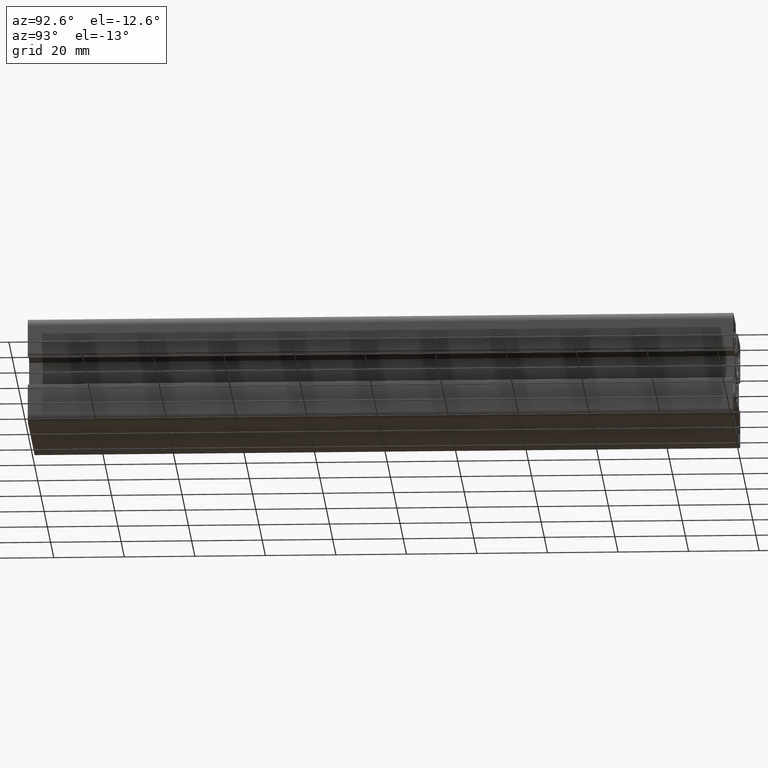
[diagram: clean part render]
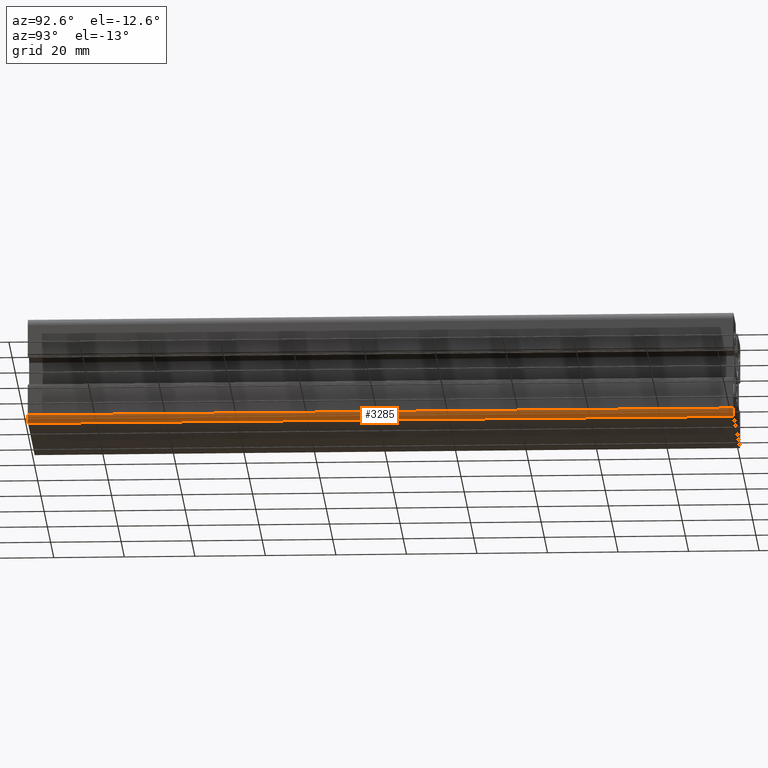
[diagram: same view with one face highlighted and labeled with its STEP entity id]
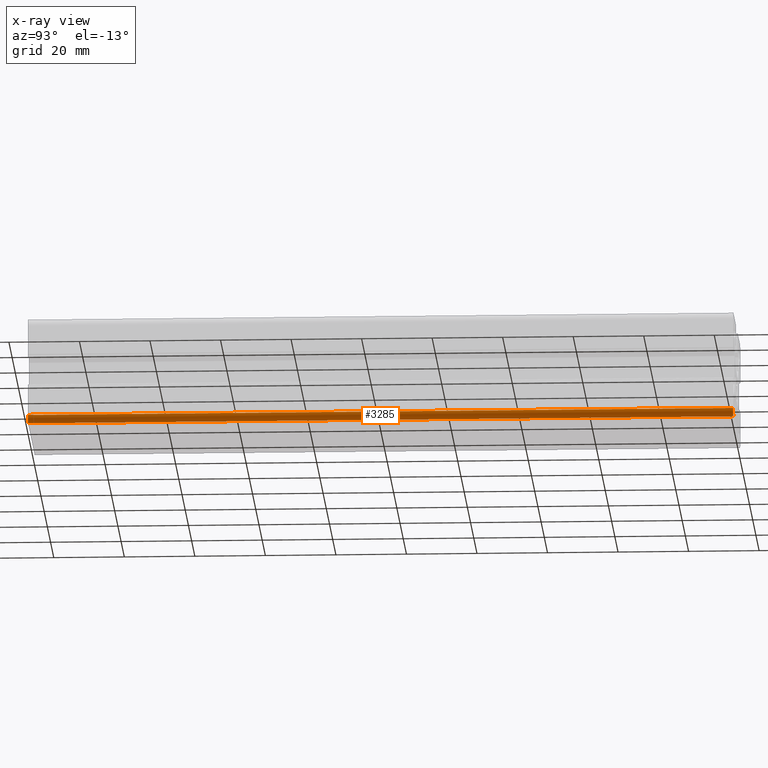
[diagram: x-ray of the same camera — body ghosted, the highlighted face saturated]
A machine part, auxiliary view. The second image highlights one B-rep face of the part: STEP entity #3285.
The next image is the same camera in x-ray: the body ghosted, the highlighted face saturated — about 0% of this face is hidden behind the body in this view.
In plain terms, the highlighted cylindrical surface (edge-blend (fillet) strip) has radius 2 mm, axis along (0, 1, 0).
Its self-contained STEP definition (entity closure, byte-faithful):
#94 = CARTESIAN_POINT ( 'NONE',  ( 22.49999999991250000, 0.0000000000000000000, -13.00002767643860000 ) ) ;
#107 = VECTOR ( 'NONE', #3067, 1000.000000000000000 ) ;
#263 = CARTESIAN_POINT ( 'NONE',  ( 20.49999999991250000, 0.0000000000000000000, -13.00002767643860000 ) ) ;
#459 = VERTEX_POINT ( 'NONE', #2526 ) ;
#881 = AXIS2_PLACEMENT_3D ( 'NONE', #263, #2854, #5470 ) ;
#1008 = CYLINDRICAL_SURFACE ( 'NONE', #4129, 2.000000000000000000 ) ;
#1251 = EDGE_CURVE ( 'NONE', #3647, #1685, #4439, .T. ) ;
#1336 = AXIS2_PLACEMENT_3D ( 'NONE', #1420, #4419, #1819 ) ;
#1345 = CARTESIAN_POINT ( 'NONE',  ( 20.49999999993500000, 0.0000000000000000000, -15.00002767643860000 ) ) ;
#1420 = CARTESIAN_POINT ( 'NONE',  ( 20.49999999991250000, 200.0000000000000000, -13.00002767643860000 ) ) ;
#1450 = CARTESIAN_POINT ( 'NONE',  ( 20.49999999993502100, 0.0000000000000000000, -15.00002767643860000 ) ) ;
#1685 = VERTEX_POINT ( 'NONE', #1450 ) ;
#1819 = DIRECTION ( 'NONE',  ( 0.0000000000000000000, 0.0000000000000000000, 1.000000000000000000 ) ) ;
#2237 = DIRECTION ( 'NONE',  ( -0.0000000000000000000, -1.000000000000000000, -0.0000000000000000000 ) ) ;
#2281 = DIRECTION ( 'NONE',  ( 0.0000000000000000000, 1.000000000000000000, 0.0000000000000000000 ) ) ;
#2526 = CARTESIAN_POINT ( 'NONE',  ( 22.49999999991250000, 200.0000000000000000, -13.00002767643860000 ) ) ;
#2624 = ORIENTED_EDGE ( 'NONE', *, *, #3184, .F. ) ;
#2690 = DIRECTION ( 'NONE',  ( 0.0000000000000000000, 0.0000000000000000000, 1.000000000000000000 ) ) ;
#2750 = CARTESIAN_POINT ( 'NONE',  ( 20.49999999991250000, 0.0000000000000000000, -13.00002767643860000 ) ) ;
#2803 = VERTEX_POINT ( 'NONE', #4913 ) ;
#2838 = LINE ( 'NONE', #94, #107 ) ;
#2854 = DIRECTION ( 'NONE',  ( 0.0000000000000000000, 1.000000000000000000, 0.0000000000000000000 ) ) ;
#2863 = CIRCLE ( 'NONE', #1336, 2.000000000000000000 ) ;
#3067 = DIRECTION ( 'NONE',  ( -0.0000000000000000000, -1.000000000000000000, -0.0000000000000000000 ) ) ;
#3184 = EDGE_CURVE ( 'NONE', #2803, #1685, #3465, .T. ) ;
#3220 = ORIENTED_EDGE ( 'NONE', *, *, #1251, .T. ) ;
#3285 = ADVANCED_FACE ( 'NONE', ( #5296 ), #1008, .T. ) ;
#3327 = VECTOR ( 'NONE', #2237, 1000.000000000000000 ) ;
#3465 = LINE ( 'NONE', #1345, #3327 ) ;
#3647 = VERTEX_POINT ( 'NONE', #4101 ) ;
#3832 = EDGE_CURVE ( 'NONE', #2803, #459, #2863, .T. ) ;
#3880 = ORIENTED_EDGE ( 'NONE', *, *, #3832, .T. ) ;
#4101 = CARTESIAN_POINT ( 'NONE',  ( 22.49999999991250000, 0.0000000000000000000, -13.00002767643860000 ) ) ;
#4129 = AXIS2_PLACEMENT_3D ( 'NONE', #2750, #2281, #2690 ) ;
#4401 = EDGE_LOOP ( 'NONE', ( #3220, #2624, #3880, #5090 ) ) ;
#4419 = DIRECTION ( 'NONE',  ( -0.0000000000000000000, -1.000000000000000000, -0.0000000000000000000 ) ) ;
#4439 = CIRCLE ( 'NONE', #881, 2.000000000000000000 ) ;
#4913 = CARTESIAN_POINT ( 'NONE',  ( 20.49999999993502100, 200.0000000000000000, -15.00002767643860000 ) ) ;
#5090 = ORIENTED_EDGE ( 'NONE', *, *, #5326, .T. ) ;
#5296 = FACE_OUTER_BOUND ( 'NONE', #4401, .T. ) ;
#5326 = EDGE_CURVE ( 'NONE', #459, #3647, #2838, .T. ) ;
#5470 = DIRECTION ( 'NONE',  ( 0.0000000000000000000, 0.0000000000000000000, 1.000000000000000000 ) ) ;